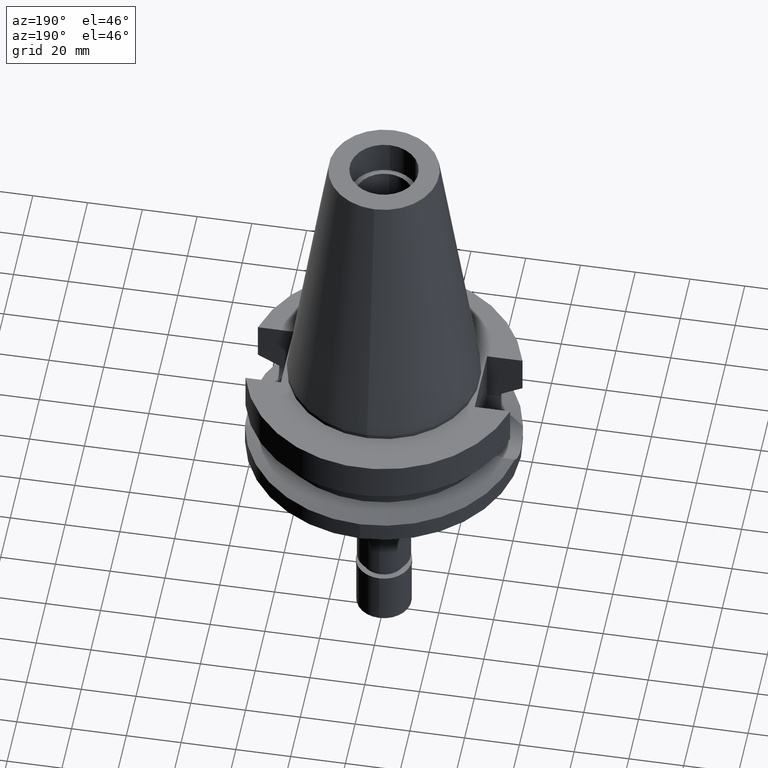
[diagram: clean part render]
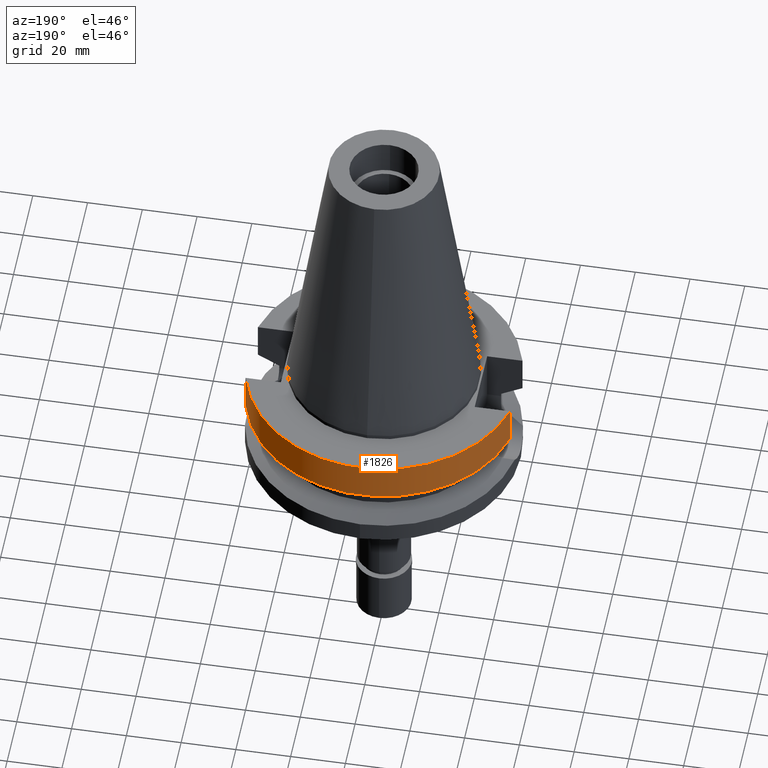
[diagram: same view with one face highlighted and labeled with its STEP entity id]
A machine part, auxiliary view. The second image highlights one B-rep face of the part: STEP entity #1826.
In plain terms, the highlighted cylindrical surface (partial cylindrical patch) has radius 50 mm, axis along (0, 0, -1).
Its self-contained STEP definition (entity closure, byte-faithful):
#27 = CARTESIAN_POINT ( 'NONE',  ( 48.32056912872999987, 12.85000385508000065, -15.66265770223999887 ) ) ;
#45 = DIRECTION ( 'NONE',  ( 7.238691078823712405E-08, -2.722003513400890933E-07, 0.9999999999999603650 ) ) ;
#62 = LINE ( 'NONE', #730, #1897 ) ;
#140 = ORIENTED_EDGE ( 'NONE', *, *, #2679, .F. ) ;
#249 = AXIS2_PLACEMENT_3D ( 'NONE', #1831, #2040, #1768 ) ;
#359 = AXIS2_PLACEMENT_3D ( 'NONE', #2807, #1577, #2558 ) ;
#368 = VERTEX_POINT ( 'NONE', #1704 ) ;
#395 = DIRECTION ( 'NONE',  ( 0.0000000000000000000, 0.0000000000000000000, -1.000000000000000000 ) ) ;
#487 = DIRECTION ( 'NONE',  ( 7.239846751167711612E-08, 2.722438110921890693E-07, -0.9999999999999603650 ) ) ;
#622 = CARTESIAN_POINT ( 'NONE',  ( -48.32057015392000210, 12.84999999999999964, -1.500000000000000000 ) ) ;
#706 = EDGE_CURVE ( 'NONE', #2191, #368, #757, .T. ) ;
#730 = CARTESIAN_POINT ( 'NONE',  ( -48.32057015392000210, 12.84999999999999964, -1.500000000000000000 ) ) ;
#757 = CIRCLE ( 'NONE', #2079, 50.00000000000000000 ) ;
#954 = CARTESIAN_POINT ( 'NONE',  ( 48.32056912872999987, 12.85000385508000065, -15.66265770223999887 ) ) ;
#1124 = VERTEX_POINT ( 'NONE', #2386 ) ;
#1333 = ORIENTED_EDGE ( 'NONE', *, *, #3109, .T. ) ;
#1386 = ORIENTED_EDGE ( 'NONE', *, *, #706, .T. ) ;
#1577 = DIRECTION ( 'NONE',  ( 0.0000000000000000000, 0.0000000000000000000, -1.000000000000000000 ) ) ;
#1623 = ORIENTED_EDGE ( 'NONE', *, *, #2711, .F. ) ;
#1667 = CARTESIAN_POINT ( 'NONE',  ( 0.0000000000000000000, 2.602251983507999750E-14, -1.500000000000000000 ) ) ;
#1704 = CARTESIAN_POINT ( 'NONE',  ( 48.32057015392000210, 12.84999999999999964, -1.500000000000000000 ) ) ;
#1768 = DIRECTION ( 'NONE',  ( 0.0000000000000000000, 1.000000000000000000, 0.0000000000000000000 ) ) ;
#1826 = ADVANCED_FACE ( 'NONE', ( #2759 ), #2071, .T. ) ;
#1831 = CARTESIAN_POINT ( 'NONE',  ( 0.0000000000000000000, 1.006319759053999930E-14, -15.66269223573000069 ) ) ;
#1853 = DIRECTION ( 'NONE',  ( 0.0000000000000000000, 1.000000000000000000, 0.0000000000000000000 ) ) ;
#1897 = VECTOR ( 'NONE', #487, 1000.000000000000114 ) ;
#1941 = VERTEX_POINT ( 'NONE', #954 ) ;
#2040 = DIRECTION ( 'NONE',  ( 0.0000000000000000000, 0.0000000000000000000, 1.000000000000000000 ) ) ;
#2071 = CYLINDRICAL_SURFACE ( 'NONE', #359, 50.00000000000000000 ) ;
#2079 = AXIS2_PLACEMENT_3D ( 'NONE', #1667, #395, #1853 ) ;
#2191 = VERTEX_POINT ( 'NONE', #622 ) ;
#2231 = EDGE_LOOP ( 'NONE', ( #1623, #1386, #140, #1333 ) ) ;
#2245 = CIRCLE ( 'NONE', #249, 50.00000000000000000 ) ;
#2386 = CARTESIAN_POINT ( 'NONE',  ( -48.32056912856999986, 12.85000385569999892, -15.66265769672999930 ) ) ;
#2470 = LINE ( 'NONE', #27, #3071 ) ;
#2558 = DIRECTION ( 'NONE',  ( 0.0000000000000000000, -1.000000000000000000, 0.0000000000000000000 ) ) ;
#2679 = EDGE_CURVE ( 'NONE', #1941, #368, #2470, .T. ) ;
#2711 = EDGE_CURVE ( 'NONE', #2191, #1124, #62, .T. ) ;
#2759 = FACE_OUTER_BOUND ( 'NONE', #2231, .T. ) ;
#2807 = CARTESIAN_POINT ( 'NONE',  ( 0.0000000000000000000, 2.602251983507999750E-14, 112.4900000000000091 ) ) ;
#3071 = VECTOR ( 'NONE', #45, 1000.000000000000114 ) ;
#3109 = EDGE_CURVE ( 'NONE', #1941, #1124, #2245, .T. ) ;